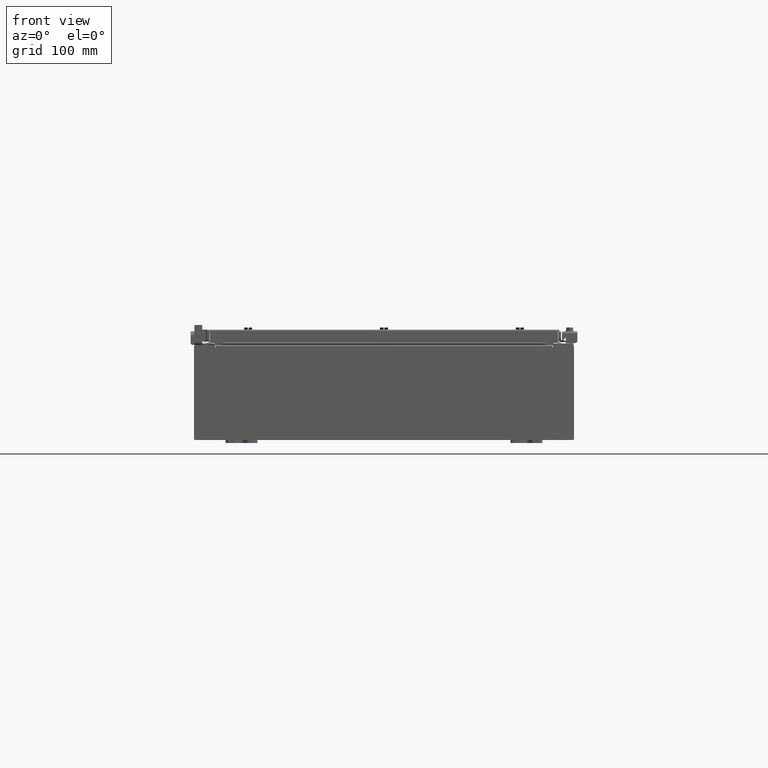
[diagram: clean part render]
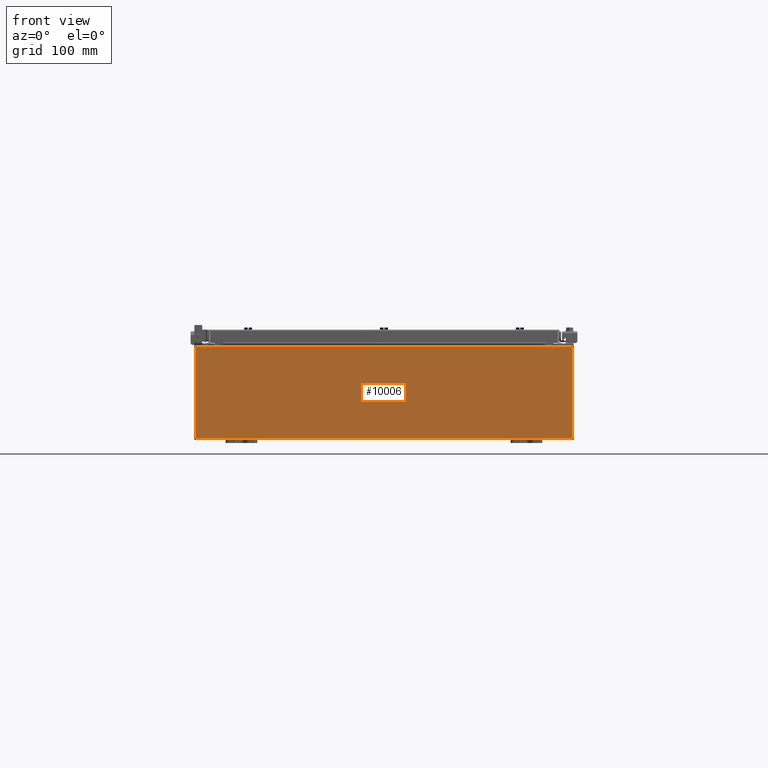
[diagram: same view with one face highlighted and labeled with its STEP entity id]
A machine part, front view. The second image highlights one B-rep face of the part: STEP entity #10006.
In plain terms, the highlighted planar face has unit normal (-0, 1, -0).
Its self-contained STEP definition (entity closure, byte-faithful):
#451 = VECTOR ( 'NONE', #7539, 39.37007874015748100 ) ;
#858 = EDGE_CURVE ( 'NONE', #7690, #1461, #16608, .T. ) ;
#933 = EDGE_LOOP ( 'NONE', ( #7996, #12227, #9621, #16839, #14818, #6260, #21444, #3920, #21471, #11559, #10157, #4787 ) ) ;
#1292 = VECTOR ( 'NONE', #6123, 39.37007874015748100 ) ;
#1374 = CIRCLE ( 'NONE', #21274, 0.01867499999999949400 ) ;
#1461 = VERTEX_POINT ( 'NONE', #3134 ) ;
#1644 = EDGE_CURVE ( 'NONE', #21693, #18084, #21598, .T. ) ;
#2169 = CARTESIAN_POINT ( 'NONE',  ( 10.67454999999987700, -0.0000000000000000000, -4.633366117301834200E-013 ) ) ;
#2266 = EDGE_CURVE ( 'NONE', #9032, #17703, #1374, .T. ) ;
#2586 = CARTESIAN_POINT ( 'NONE',  ( 10.65587500000000200, 0.0000000000000000000, 2.874950000000000600 ) ) ;
#2632 = VECTOR ( 'NONE', #18432, 39.37007874015748100 ) ;
#2812 = VECTOR ( 'NONE', #2940, 39.37007874015748100 ) ;
#2940 = DIRECTION ( 'NONE',  ( -0.0000000000000000000, -0.0000000000000000000, 1.000000000000000000 ) ) ;
#3134 = CARTESIAN_POINT ( 'NONE',  ( -11.92530000000000000, 0.0000000000000000000, 2.925300000000000500 ) ) ;
#3149 = CARTESIAN_POINT ( 'NONE',  ( -11.92530000000000000, 0.0000000000000000000, -2.925299999999999600 ) ) ;
#3314 = EDGE_CURVE ( 'NONE', #17703, #11870, #21531, .T. ) ;
#3718 = VECTOR ( 'NONE', #15570, 39.37007874015748100 ) ;
#3727 = CARTESIAN_POINT ( 'NONE',  ( 10.63720000000000400, 0.0000000000000000000, 2.912300000000000600 ) ) ;
#3890 = VERTEX_POINT ( 'NONE', #15977 ) ;
#3920 = ORIENTED_EDGE ( 'NONE', *, *, #4489, .T. ) ;
#4380 = DIRECTION ( 'NONE',  ( 0.0000000000000000000, 0.0000000000000000000, -1.000000000000000000 ) ) ;
#4489 = EDGE_CURVE ( 'NONE', #4498, #21693, #15619, .T. ) ;
#4498 = VERTEX_POINT ( 'NONE', #4946 ) ;
#4787 = ORIENTED_EDGE ( 'NONE', *, *, #22116, .T. ) ;
#4946 = CARTESIAN_POINT ( 'NONE',  ( 10.67455000000000200, 0.0000000000000000000, 2.925300000000000500 ) ) ;
#4962 = EDGE_CURVE ( 'NONE', #6490, #14530, #11935, .T. ) ;
#5643 = CARTESIAN_POINT ( 'NONE',  ( -11.92530000000000000, 0.0000000000000000000, 2.925300000000000500 ) ) ;
#5695 = EDGE_CURVE ( 'NONE', #3890, #14530, #7960, .T. ) ;
#6123 = DIRECTION ( 'NONE',  ( 1.000000000000000000, 0.0000000000000000000, 0.0000000000000000000 ) ) ;
#6260 = ORIENTED_EDGE ( 'NONE', *, *, #8722, .F. ) ;
#6490 = VERTEX_POINT ( 'NONE', #22881 ) ;
#7317 = CARTESIAN_POINT ( 'NONE',  ( -10.67455000000000200, 0.0000000000000000000, 2.925300000000000500 ) ) ;
#7414 = CARTESIAN_POINT ( 'NONE',  ( 11.92530000000000000, 0.0000000000000000000, 2.925300000000000500 ) ) ;
#7456 = DIRECTION ( 'NONE',  ( 0.0000000000000000000, 0.0000000000000000000, -1.000000000000000000 ) ) ;
#7539 = DIRECTION ( 'NONE',  ( 1.000000000000000000, 0.0000000000000000000, 0.0000000000000000000 ) ) ;
#7690 = VERTEX_POINT ( 'NONE', #22576 ) ;
#7960 = LINE ( 'NONE', #19778, #2632 ) ;
#7996 = ORIENTED_EDGE ( 'NONE', *, *, #3314, .F. ) ;
#8404 = VECTOR ( 'NONE', #7456, 39.37007874015748100 ) ;
#8722 = EDGE_CURVE ( 'NONE', #20657, #3890, #12540, .T. ) ;
#8919 = CARTESIAN_POINT ( 'NONE',  ( -10.63720000000000400, -0.0000000000000000000, 2.874950000000000600 ) ) ;
#9032 = VERTEX_POINT ( 'NONE', #8919 ) ;
#9200 = EDGE_CURVE ( 'NONE', #4498, #20657, #19951, .T. ) ;
#9541 = DIRECTION ( 'NONE',  ( 0.0000000000000000000, 0.0000000000000000000, -1.000000000000000000 ) ) ;
#9568 = DIRECTION ( 'NONE',  ( -0.0000000000000000000, 1.000000000000000000, -0.0000000000000000000 ) ) ;
#9621 = ORIENTED_EDGE ( 'NONE', *, *, #13257, .F. ) ;
#9622 = CARTESIAN_POINT ( 'NONE',  ( -10.65587500000000200, 0.0000000000000000000, 2.874950000000000600 ) ) ;
#9623 = EDGE_CURVE ( 'NONE', #18084, #7690, #17960, .T. ) ;
#9764 = DIRECTION ( 'NONE',  ( 0.0000000000000000000, -0.0000000000000000000, -1.000000000000000000 ) ) ;
#9996 = LINE ( 'NONE', #18322, #451 ) ;
#10006 = ADVANCED_FACE ( 'NONE', ( #17679 ), #18723, .F. ) ;
#10157 = ORIENTED_EDGE ( 'NONE', *, *, #858, .T. ) ;
#10365 = VECTOR ( 'NONE', #14819, 39.37007874015748100 ) ;
#10734 = CARTESIAN_POINT ( 'NONE',  ( -10.63720000000000400, 1.024442997624098700E-016, 2.912300000000000600 ) ) ;
#11559 = ORIENTED_EDGE ( 'NONE', *, *, #9623, .T. ) ;
#11870 = VERTEX_POINT ( 'NONE', #7317 ) ;
#11935 = LINE ( 'NONE', #10734, #16169 ) ;
#11978 = CARTESIAN_POINT ( 'NONE',  ( 11.92530000000000000, 0.0000000000000000000, 2.925300000000000500 ) ) ;
#12000 = VECTOR ( 'NONE', #16353, 39.37007874015748100 ) ;
#12227 = ORIENTED_EDGE ( 'NONE', *, *, #2266, .F. ) ;
#12504 = AXIS2_PLACEMENT_3D ( 'NONE', #2586, #15166, #4380 ) ;
#12540 = CIRCLE ( 'NONE', #12504, 0.01867499999999949400 ) ;
#13257 = EDGE_CURVE ( 'NONE', #6490, #9032, #17523, .T. ) ;
#13313 = DIRECTION ( 'NONE',  ( 0.0000000000000000000, -1.000000000000000000, 0.0000000000000000000 ) ) ;
#14530 = VERTEX_POINT ( 'NONE', #3727 ) ;
#14818 = ORIENTED_EDGE ( 'NONE', *, *, #5695, .F. ) ;
#14819 = DIRECTION ( 'NONE',  ( -4.340572780400004900E-014, 0.0000000000000000000, -1.000000000000000000 ) ) ;
#15166 = DIRECTION ( 'NONE',  ( -0.0000000000000000000, 1.000000000000000000, -0.0000000000000000000 ) ) ;
#15287 = CARTESIAN_POINT ( 'NONE',  ( -11.92530000000000000, 0.0000000000000000000, 2.925300000000000500 ) ) ;
#15439 = DIRECTION ( 'NONE',  ( 1.000000000000000000, 0.0000000000000000000, 0.0000000000000000000 ) ) ;
#15570 = DIRECTION ( 'NONE',  ( 0.0000000000000000000, 0.0000000000000000000, -1.000000000000000000 ) ) ;
#15619 = LINE ( 'NONE', #5643, #1292 ) ;
#15977 = CARTESIAN_POINT ( 'NONE',  ( 10.63720000000000400, 0.0000000000000000000, 2.874950000000000600 ) ) ;
#16130 = CARTESIAN_POINT ( 'NONE',  ( 11.92530000000000000, 0.0000000000000000000, -2.925299999999999600 ) ) ;
#16169 = VECTOR ( 'NONE', #15439, 39.37007874015748100 ) ;
#16285 = CARTESIAN_POINT ( 'NONE',  ( 10.67455000000000200, 0.0000000000000000000, 2.874950000000000600 ) ) ;
#16353 = DIRECTION ( 'NONE',  ( 0.0000000000000000000, 0.0000000000000000000, 1.000000000000000000 ) ) ;
#16608 = LINE ( 'NONE', #15287, #2812 ) ;
#16839 = ORIENTED_EDGE ( 'NONE', *, *, #4962, .T. ) ;
#17523 = LINE ( 'NONE', #20978, #3718 ) ;
#17679 = FACE_OUTER_BOUND ( 'NONE', #933, .T. ) ;
#17703 = VERTEX_POINT ( 'NONE', #22177 ) ;
#17960 = LINE ( 'NONE', #3149, #22172 ) ;
#18084 = VERTEX_POINT ( 'NONE', #16130 ) ;
#18093 = CARTESIAN_POINT ( 'NONE',  ( -10.67455000000000200, -0.0000000000000000000, 0.0000000000000000000 ) ) ;
#18322 = CARTESIAN_POINT ( 'NONE',  ( -11.92530000000000000, 0.0000000000000000000, 2.925300000000000500 ) ) ;
#18432 = DIRECTION ( 'NONE',  ( 0.0000000000000000000, 0.0000000000000000000, 1.000000000000000000 ) ) ;
#18723 = PLANE ( 'NONE',  #21878 ) ;
#19778 = CARTESIAN_POINT ( 'NONE',  ( 10.63720000000000400, 0.0000000000000000000, 0.0000000000000000000 ) ) ;
#19951 = LINE ( 'NONE', #2169, #10365 ) ;
#20546 = CARTESIAN_POINT ( 'NONE',  ( 0.0000000000000000000, 0.0000000000000000000, 0.0000000000000000000 ) ) ;
#20657 = VERTEX_POINT ( 'NONE', #16285 ) ;
#20978 = CARTESIAN_POINT ( 'NONE',  ( -10.63720000000000400, -0.0000000000000000000, 0.0000000000000000000 ) ) ;
#21148 = DIRECTION ( 'NONE',  ( -1.000000000000000000, -0.0000000000000000000, -0.0000000000000000000 ) ) ;
#21274 = AXIS2_PLACEMENT_3D ( 'NONE', #9622, #9568, #9541 ) ;
#21444 = ORIENTED_EDGE ( 'NONE', *, *, #9200, .F. ) ;
#21471 = ORIENTED_EDGE ( 'NONE', *, *, #1644, .T. ) ;
#21531 = LINE ( 'NONE', #18093, #12000 ) ;
#21598 = LINE ( 'NONE', #7414, #8404 ) ;
#21693 = VERTEX_POINT ( 'NONE', #11978 ) ;
#21878 = AXIS2_PLACEMENT_3D ( 'NONE', #20546, #13313, #9764 ) ;
#22116 = EDGE_CURVE ( 'NONE', #1461, #11870, #9996, .T. ) ;
#22172 = VECTOR ( 'NONE', #21148, 39.37007874015748100 ) ;
#22177 = CARTESIAN_POINT ( 'NONE',  ( -10.67455000000000200, 0.0000000000000000000, 2.874950000000000600 ) ) ;
#22576 = CARTESIAN_POINT ( 'NONE',  ( -11.92530000000000000, 0.0000000000000000000, -2.925299999999999600 ) ) ;
#22881 = CARTESIAN_POINT ( 'NONE',  ( -10.63720000000000400, 1.024442997624098700E-016, 2.912300000000000600 ) ) ;